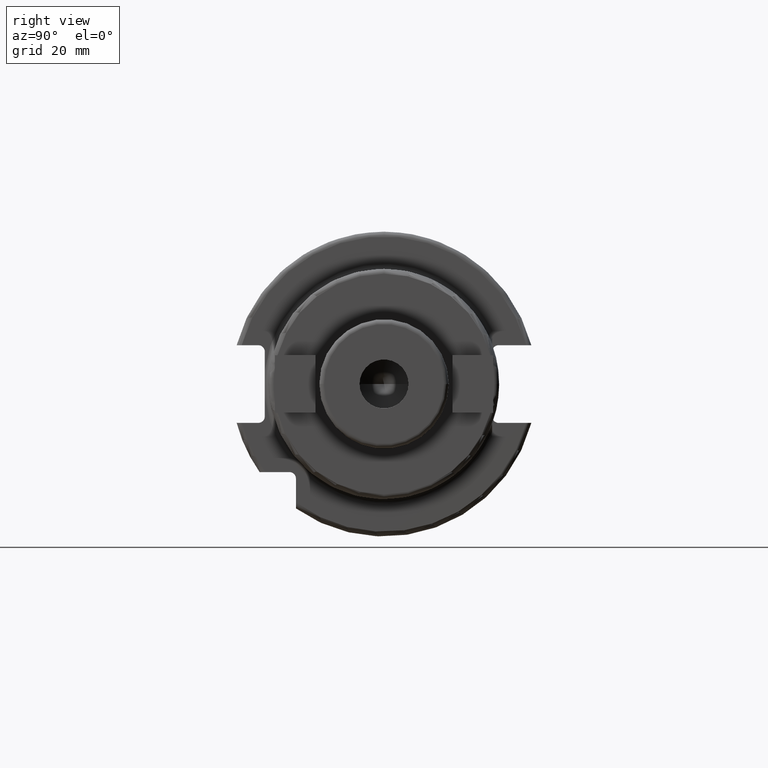
[diagram: clean part render]
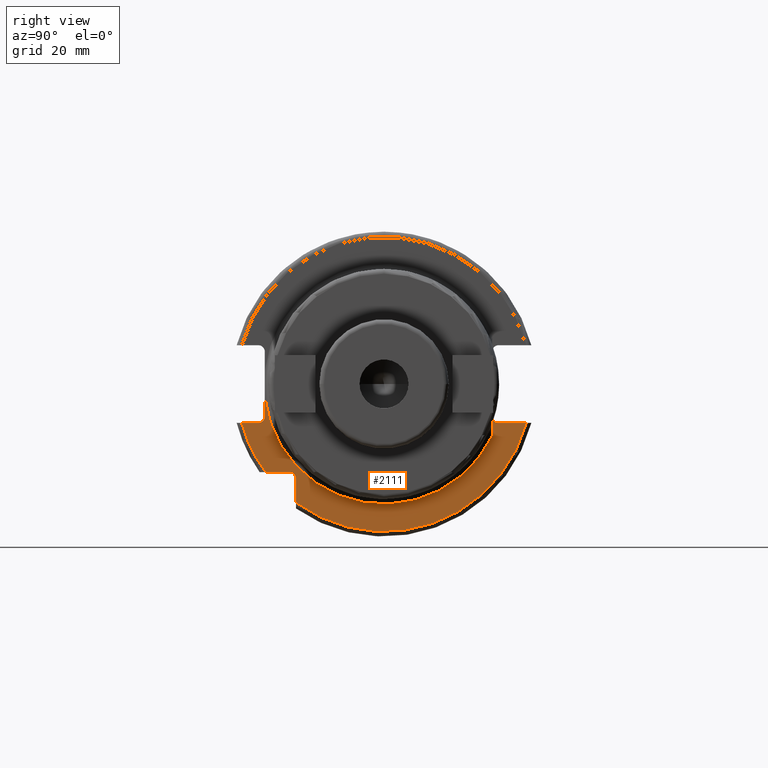
[diagram: same view with one face highlighted and labeled with its STEP entity id]
A machine part, right view. The second image highlights one B-rep face of the part: STEP entity #2111.
In plain terms, the highlighted planar face has unit normal (1, 0, 0).
Its self-contained STEP definition (entity closure, byte-faithful):
#126=DIRECTION('',(0.E0,0.E0,1.E0));
#127=VECTOR('',#126,4.043400761576E0);
#128=CARTESIAN_POINT('',(1.905E1,2.255E1,-1.079340076158E1));
#129=LINE('',#128,#127);
#169=CARTESIAN_POINT('',(1.905E1,0.E0,0.E0));
#170=DIRECTION('',(1.E0,0.E0,0.E0));
#171=DIRECTION('',(0.E0,-9.939929941343E-1,-1.094437189239E-1));
#172=AXIS2_PLACEMENT_3D('',#169,#170,#171);
#174=CARTESIAN_POINT('',(1.905E1,2.39E1,-6.75E0));
#175=DIRECTION('',(1.E0,0.E0,0.E0));
#176=DIRECTION('',(0.E0,-1.E0,0.E0));
#177=AXIS2_PLACEMENT_3D('',#174,#175,#176);
#179=DIRECTION('',(0.E0,-1.E0,0.E0));
#180=VECTOR('',#179,5.776950757280E0);
#181=CARTESIAN_POINT('',(1.905E1,2.967695075728E1,-8.1E0));
#182=LINE('',#181,#180);
#183=DIRECTION('',(0.E0,0.E0,1.E0));
#184=VECTOR('',#183,4.990259339464E0);
#185=CARTESIAN_POINT('',(1.905E1,-1.835E1,-2.469025933946E1));
#186=LINE('',#185,#184);
#187=DIRECTION('',(0.E0,-1.E0,0.E0));
#188=VECTOR('',#187,4.990259339464E0);
#189=CARTESIAN_POINT('',(1.905E1,-1.97E1,-1.835E1));
#190=LINE('',#189,#188);
#191=DIRECTION('',(0.E0,1.E0,0.E0));
#192=VECTOR('',#191,3.476950757280E0);
#193=CARTESIAN_POINT('',(1.905E1,-2.967695075728E1,-8.1E0));
#194=LINE('',#193,#192);
#195=DIRECTION('',(0.E0,9.361352848982E-7,9.999999999996E-1));
#196=VECTOR('',#195,4.014927237118E0);
#197=CARTESIAN_POINT('',(1.905E1,-2.485E1,-6.75E0));
#198=LINE('',#197,#196);
#617=CARTESIAN_POINT('',(1.905E1,-2.62E1,-6.75E0));
#618=DIRECTION('',(-1.E0,0.E0,0.E0));
#619=DIRECTION('',(0.E0,1.E0,0.E0));
#620=AXIS2_PLACEMENT_3D('',#617,#618,#619);
#640=CARTESIAN_POINT('',(1.905E1,2.967695075728E1,-8.1E0));
#653=CARTESIAN_POINT('',(1.905E1,0.E0,0.E0));
#654=DIRECTION('',(-1.E0,0.E0,0.E0));
#655=DIRECTION('',(0.E0,9.647119303464E-1,-2.633075985372E-1));
#656=AXIS2_PLACEMENT_3D('',#653,#654,#655);
#658=CARTESIAN_POINT('',(1.905E1,-2.967695075728E1,-8.1E0));
#669=CARTESIAN_POINT('',(1.905E1,0.E0,0.E0));
#670=DIRECTION('',(-1.E0,0.E0,0.E0));
#671=DIRECTION('',(0.E0,-8.026089992512E-1,-5.965054855750E-1));
#672=AXIS2_PLACEMENT_3D('',#669,#670,#671);
#1234=CARTESIAN_POINT('',(1.905E1,-1.97E1,-1.97E1));
#1235=DIRECTION('',(-1.E0,0.E0,0.E0));
#1236=DIRECTION('',(0.E0,0.E0,1.E0));
#1237=AXIS2_PLACEMENT_3D('',#1234,#1235,#1236);
#1693=VERTEX_POINT('',#640);
#1694=VERTEX_POINT('',#658);
#1705=CARTESIAN_POINT('',(1.905E1,-1.835E1,-2.469025933946E1));
#1706=VERTEX_POINT('',#1705);
#1713=CARTESIAN_POINT('',(1.905E1,2.39E1,-8.1E0));
#1715=VERTEX_POINT('',#1713);
#1721=CARTESIAN_POINT('',(1.905E1,-2.485E1,-6.75E0));
#1723=VERTEX_POINT('',#1721);
#1725=CARTESIAN_POINT('',(1.905E1,-2.62E1,-8.1E0));
#1727=VERTEX_POINT('',#1725);
#1737=CARTESIAN_POINT('',(1.905E1,-1.97E1,-1.835E1));
#1738=CARTESIAN_POINT('',(1.905E1,-2.469025933946E1,-1.835E1));
#1739=VERTEX_POINT('',#1737);
#1740=VERTEX_POINT('',#1738);
#1741=CARTESIAN_POINT('',(1.905E1,-1.835E1,-1.97E1));
#1742=VERTEX_POINT('',#1741);
#1770=CARTESIAN_POINT('',(1.905E1,-2.484999624148E1,-2.735072762884E0));
#1771=VERTEX_POINT('',#1770);
#1850=CARTESIAN_POINT('',(1.905E1,2.255E1,-1.079340076158E1));
#1851=CARTESIAN_POINT('',(1.905E1,2.255E1,-6.75E0));
#1852=VERTEX_POINT('',#1850);
#1853=VERTEX_POINT('',#1851);
#2082=CARTESIAN_POINT('',(1.905E1,0.E0,0.E0));
#2083=DIRECTION('',(1.E0,0.E0,0.E0));
#2084=DIRECTION('',(0.E0,-1.E0,0.E0));
#2085=AXIS2_PLACEMENT_3D('',#2082,#2083,#2084);
#2086=PLANE('',#2085);
#2088=ORIENTED_EDGE('',*,*,#2087,.T.);
#2089=ORIENTED_EDGE('',*,*,#2018,.T.);
#2090=ORIENTED_EDGE('',*,*,#2049,.T.);
#2092=ORIENTED_EDGE('',*,*,#2091,.F.);
#2094=ORIENTED_EDGE('',*,*,#2093,.T.);
#2096=ORIENTED_EDGE('',*,*,#2095,.T.);
#2098=ORIENTED_EDGE('',*,*,#2097,.F.);
#2100=ORIENTED_EDGE('',*,*,#2099,.T.);
#2102=ORIENTED_EDGE('',*,*,#2101,.T.);
#2104=ORIENTED_EDGE('',*,*,#2103,.T.);
#2106=ORIENTED_EDGE('',*,*,#2105,.F.);
#2108=ORIENTED_EDGE('',*,*,#2107,.T.);
#2109=EDGE_LOOP('',(#2088,#2089,#2090,#2092,#2094,#2096,#2098,#2100,#2102,#2104,
#2106,#2108));
#2110=FACE_OUTER_BOUND('',#2109,.F.);
#2111=ADVANCED_FACE('',(#2110),#2086,.T.);
#173=CIRCLE('',#172,2.5E1);
#178=CIRCLE('',#177,1.35E0);
#621=CIRCLE('',#620,1.35E0);
#657=CIRCLE('',#656,3.07625E1);
#673=CIRCLE('',#672,3.07625E1);
#1238=CIRCLE('',#1237,1.35E0);
#2018=EDGE_CURVE('',#1852,#1853,#129,.T.);
#2049=EDGE_CURVE('',#1853,#1715,#178,.T.);
#2087=EDGE_CURVE('',#1771,#1852,#173,.T.);
#2091=EDGE_CURVE('',#1693,#1715,#182,.T.);
#2093=EDGE_CURVE('',#1693,#1706,#657,.T.);
#2095=EDGE_CURVE('',#1706,#1742,#186,.T.);
#2097=EDGE_CURVE('',#1739,#1742,#1238,.T.);
#2099=EDGE_CURVE('',#1739,#1740,#190,.T.);
#2101=EDGE_CURVE('',#1740,#1694,#673,.T.);
#2103=EDGE_CURVE('',#1694,#1727,#194,.T.);
#2105=EDGE_CURVE('',#1723,#1727,#621,.T.);
#2107=EDGE_CURVE('',#1723,#1771,#198,.T.);